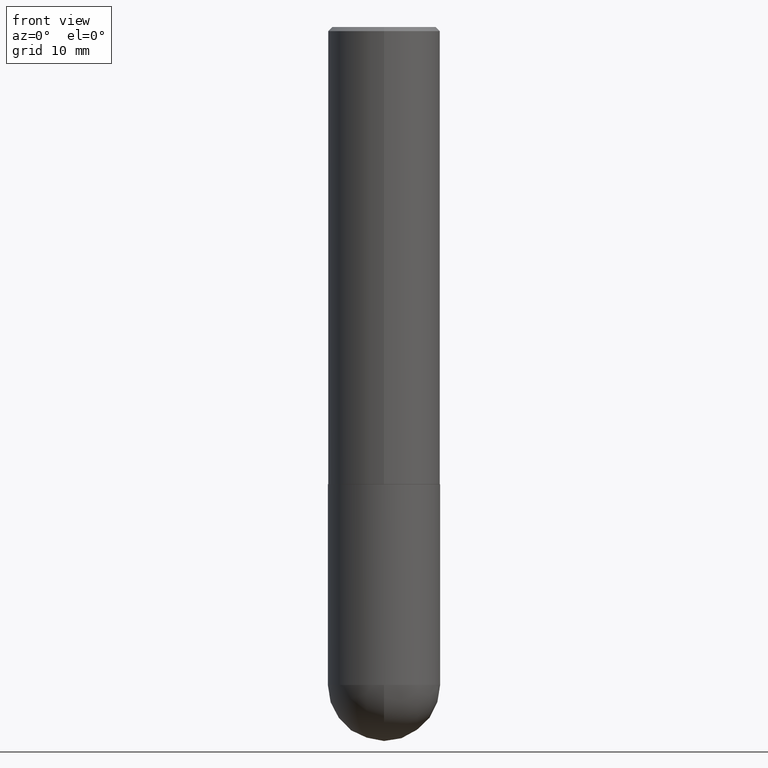
[diagram: clean part render]
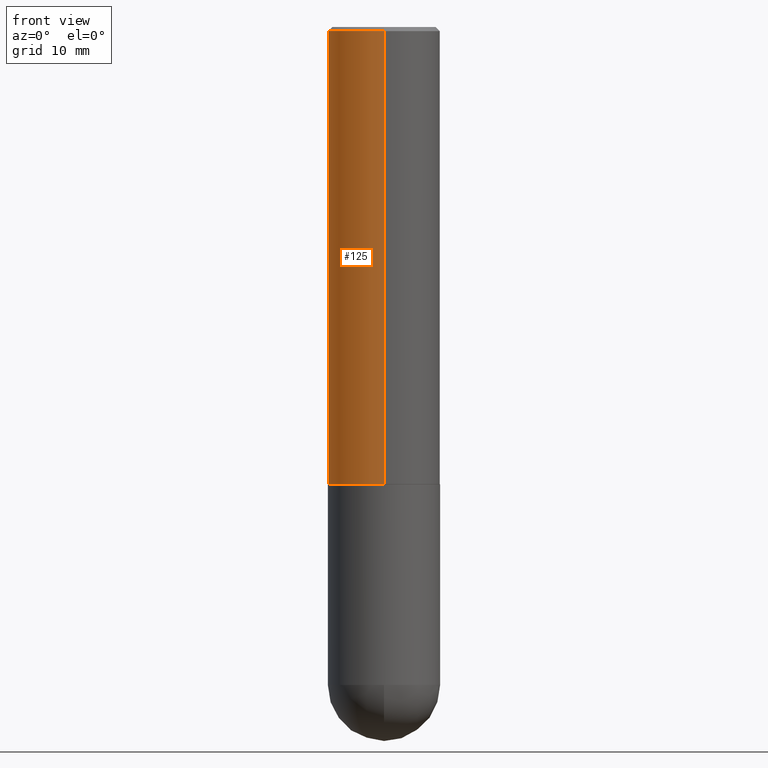
[diagram: same view with one face highlighted and labeled with its STEP entity id]
A machine part, front view. The second image highlights one B-rep face of the part: STEP entity #125.
In plain terms, the highlighted cylindrical surface (partial cylindrical patch) has radius 7.0002 mm, axis along (-0, 0, 1).
Its self-contained STEP definition (entity closure, byte-faithful):
#9 = DIRECTION ( 'NONE',  ( -2.446173056505300385E-29, 3.490472812301231884E-15, 1.000000000000000000 ) ) ;
#12 = DIRECTION ( 'NONE',  ( -2.446173056505300385E-29, 3.490472812301231884E-15, 1.000000000000000000 ) ) ;
#13 = CARTESIAN_POINT ( 'NONE',  ( 4.892346113010616569E-31, -6.980945624602486202E-17, -0.02000000000000006287 ) ) ;
#22 = EDGE_CURVE ( 'NONE', #155, #323, #158, .T. ) ;
#24 = CARTESIAN_POINT ( 'NONE',  ( 1.958255779754864988E-15, 0.2755999999999924621, -2.243100000000000538 ) ) ;
#28 = CARTESIAN_POINT ( 'NONE',  ( 1.958255779754836589E-15, 0.2756000000000001227, -9.619743070702200430E-16 ) ) ;
#33 = ORIENTED_EDGE ( 'NONE', *, *, #45, .F. ) ;
#36 = AXIS2_PLACEMENT_3D ( 'NONE', #13, #12, #135 ) ;
#45 = EDGE_CURVE ( 'NONE', #200, #331, #148, .T. ) ;
#47 = VECTOR ( 'NONE', #369, 39.37007874015748143 ) ;
#54 = DIRECTION ( 'NONE',  ( -2.446173056505300385E-29, 3.490472812301231884E-15, 1.000000000000000000 ) ) ;
#87 = DIRECTION ( 'NONE',  ( -6.982962677686265922E-15, -1.000000000000000000, 3.964946289788476952E-15 ) ) ;
#89 = VECTOR ( 'NONE', #9, 39.37007874015748143 ) ;
#98 = CARTESIAN_POINT ( 'NONE',  ( -1.890753248185833319E-15, -0.2756000000000000671, -0.01999999999999910530 ) ) ;
#99 = ORIENTED_EDGE ( 'NONE', *, *, #22, .T. ) ;
#103 = EDGE_LOOP ( 'NONE', ( #33, #117, #99, #134 ) ) ;
#114 = CARTESIAN_POINT ( 'NONE',  ( 1.924504513970335348E-15, 0.2755999999999999006, -0.02000000000000102390 ) ) ;
#117 = ORIENTED_EDGE ( 'NONE', *, *, #147, .T. ) ;
#122 = CARTESIAN_POINT ( 'NONE',  ( 5.487010783047037445E-29, -7.829479565272891887E-15, -2.243099999999999206 ) ) ;
#125 = ADVANCED_FACE ( 'NONE', ( #221 ), #146, .T. ) ;
#131 = CARTESIAN_POINT ( 'NONE',  ( -1.924504513970335743E-15, -0.2756000000000001227, 9.619743070702200430E-16 ) ) ;
#134 = ORIENTED_EDGE ( 'NONE', *, *, #407, .F. ) ;
#135 = DIRECTION ( 'NONE',  ( -6.982962677686265922E-15, -1.000000000000000000, 3.484816075009406388E-15 ) ) ;
#146 = CYLINDRICAL_SURFACE ( 'NONE', #391, 0.2756000000000001227 ) ;
#147 = EDGE_CURVE ( 'NONE', #200, #155, #235, .T. ) ;
#148 = LINE ( 'NONE', #28, #47 ) ;
#155 = VERTEX_POINT ( 'NONE', #182 ) ;
#158 = LINE ( 'NONE', #131, #89 ) ;
#165 = AXIS2_PLACEMENT_3D ( 'NONE', #122, #344, #87 ) ;
#182 = CARTESIAN_POINT ( 'NONE',  ( -1.924504513970282100E-15, -0.2756000000000080608, -2.243099999999998317 ) ) ;
#200 = VERTEX_POINT ( 'NONE', #24 ) ;
#211 = CIRCLE ( 'NONE', #36, 0.2756000000000000116 ) ;
#215 = DIRECTION ( 'NONE',  ( -6.982962677686265922E-15, -1.000000000000000000, 3.490472812301232279E-15 ) ) ;
#221 = FACE_OUTER_BOUND ( 'NONE', #103, .T. ) ;
#235 = CIRCLE ( 'NONE', #165, 0.2756000000000002892 ) ;
#323 = VERTEX_POINT ( 'NONE', #98 ) ;
#331 = VERTEX_POINT ( 'NONE', #114 ) ;
#344 = DIRECTION ( 'NONE',  ( -2.446173056505300385E-29, 3.490472812301231884E-15, 1.000000000000000000 ) ) ;
#369 = DIRECTION ( 'NONE',  ( -2.446173056505300385E-29, 3.490472812301231884E-15, 1.000000000000000000 ) ) ;
#391 = AXIS2_PLACEMENT_3D ( 'NONE', #410, #54, #215 ) ;
#407 = EDGE_CURVE ( 'NONE', #331, #323, #211, .T. ) ;
#410 = CARTESIAN_POINT ( 'NONE',  ( 0.000000000000000000, 0.000000000000000000, 0.000000000000000000 ) ) ;